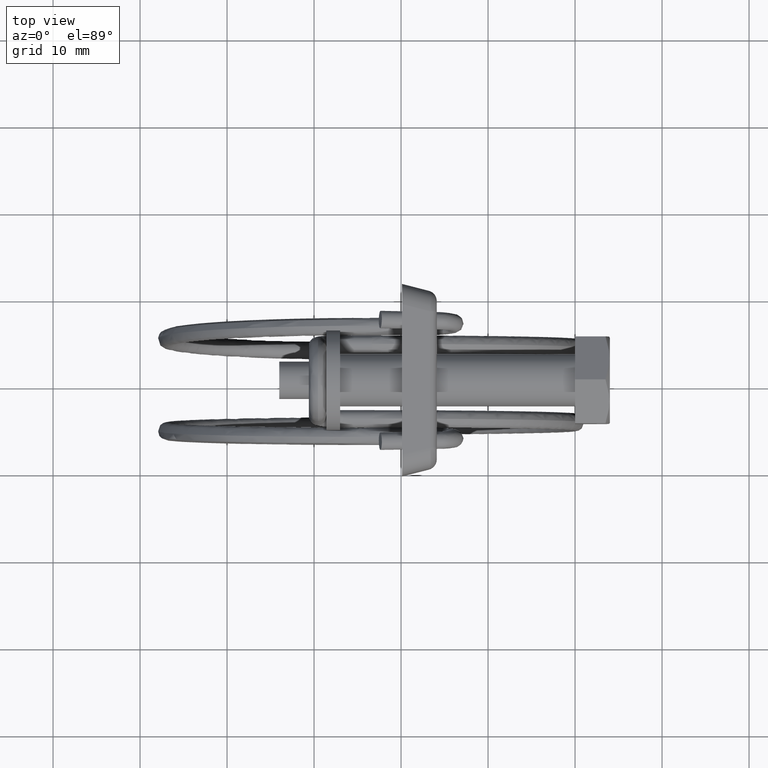
[diagram: clean part render]
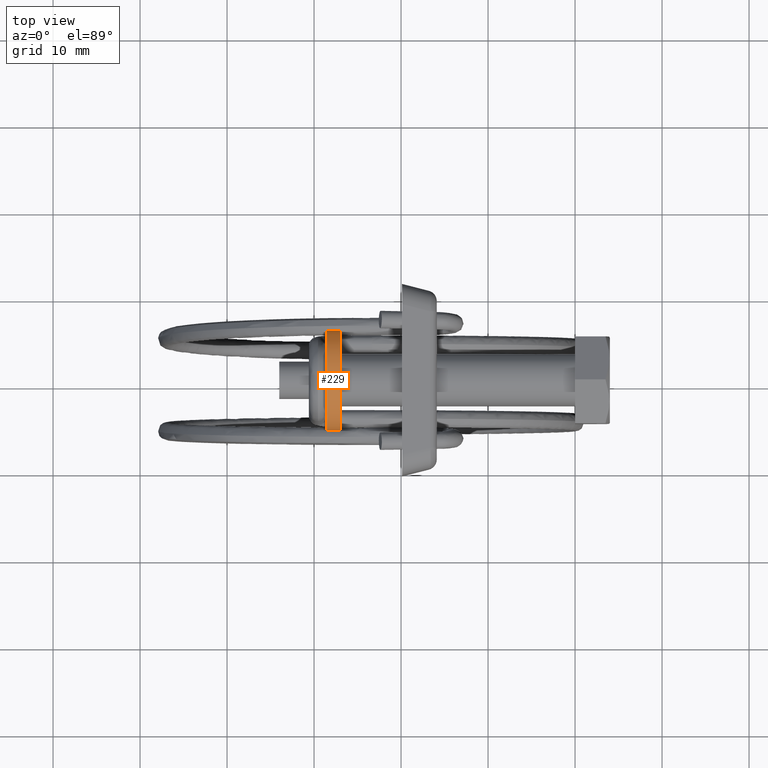
[diagram: same view with one face highlighted and labeled with its STEP entity id]
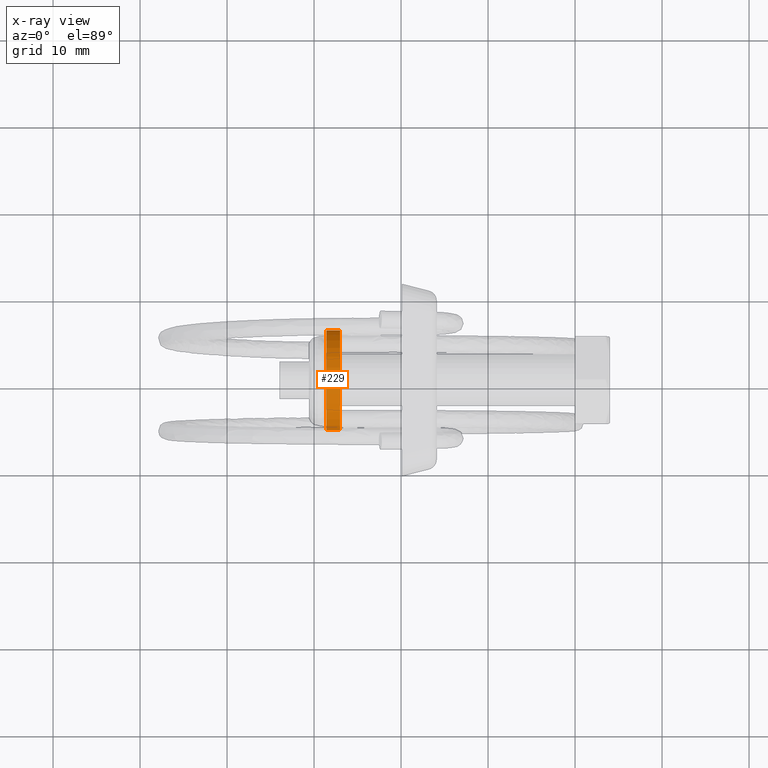
[diagram: x-ray of the same camera — body ghosted, the highlighted face saturated]
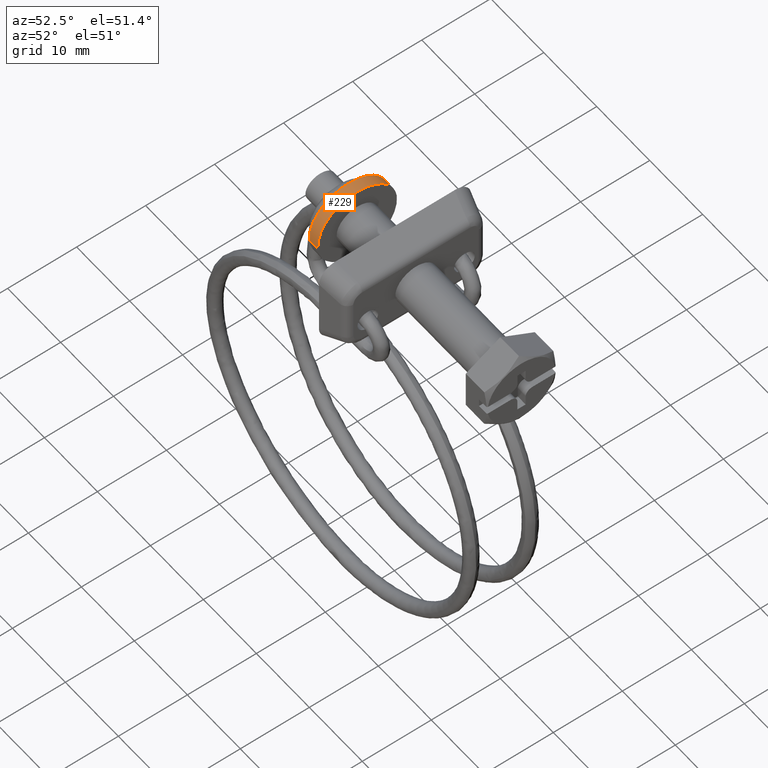
[diagram: same view with one face highlighted and labeled with its STEP entity id]
A machine part, top view. The second image highlights one B-rep face of the part: STEP entity #229.
The next image is the same camera in x-ray: the body ghosted, the highlighted face saturated — about 0% of this face is hidden behind the body in this view.
A second angle (auxiliary view) of the same face is appended — the face is thin or edge-on in the first view.
In plain terms, the highlighted face is a freeform B-spline surface patch.
Its self-contained STEP definition (entity closure, byte-faithful):
#66=CARTESIAN_POINT('',(-28.600000000000001,5.709804776584528,0.678696849331494));
#67=VERTEX_POINT('',#66);
#85=CARTESIAN_POINT('',(-27.0,5.709804776584528,0.678696849331494));
#86=VERTEX_POINT('',#85);
#87=CARTESIAN_POINT('',(-27.0,5.709804776584528,0.678696849331494));
#88=CARTESIAN_POINT('',(-28.600000000000001,5.709804776584528,0.678696849331494));
#89=QUASI_UNIFORM_CURVE('',1,(#87,#88),.UNSPECIFIED.,.F.,.U.);
#90=EDGE_CURVE('',#86,#67,#89,.T.);
#109=CARTESIAN_POINT('',(-27.0,-5.739275290784300,-0.351025834636235));
#110=VERTEX_POINT('',#109);
#124=CARTESIAN_POINT('',(-28.599999999999909,-5.739275293275673,-0.351025793901882));
#125=VERTEX_POINT('',#124);
#126=CARTESIAN_POINT('',(-27.0,-5.739275290784300,-0.351025834636235));
#127=CARTESIAN_POINT('',(-28.599999999999909,-5.739275293275673,-0.351025793901882));
#128=QUASI_UNIFORM_CURVE('',1,(#126,#127),.UNSPECIFIED.,.F.,.U.);
#129=EDGE_CURVE('',#110,#125,#128,.T.);
#147=CARTESIAN_POINT('',(-26.960000000000001,-5.739275090925734,-0.351029102325428));
#148=CARTESIAN_POINT('',(-26.959999999999997,-6.090304193251162,5.388245988600307));
#149=CARTESIAN_POINT('',(-26.960000000000001,-0.351029102325428,5.739275090925734));
#150=CARTESIAN_POINT('',(-26.960000000000001,5.068875072327130,6.070770631212033));
#151=CARTESIAN_POINT('',(-26.960000000000004,5.709804776591082,0.678696849276361));
#152=CARTESIAN_POINT('',(-28.641000000000009,-5.739275090925734,-0.351029102325428));
#153=CARTESIAN_POINT('',(-28.641000000000005,-6.090304193251162,5.388245988600307));
#154=CARTESIAN_POINT('',(-28.641000000000009,-0.351029102325428,5.739275090925734));
#155=CARTESIAN_POINT('',(-28.640999999999995,5.068875072327130,6.070770631212033));
#156=CARTESIAN_POINT('',(-28.641000000000016,5.709804776591082,0.678696849276361));
#164=(BOUNDED_SURFACE()B_SPLINE_SURFACE(2,1,((#147,#152),(#148,#153),(#149,#154),(#150,#155),(#151,#156)),.UNSPECIFIED.,.F.,.F.,.U.)B_SPLINE_SURFACE_WITH_KNOTS((3,2,3),(2,2),(0.0,9.526911934581184,18.672747391779119),(0.0,1.0),.UNSPECIFIED.)GEOMETRIC_REPRESENTATION_ITEM()RATIONAL_B_SPLINE_SURFACE(((1.0,1.0),(0.707106781186548,0.707106781186548),(1.0,1.0),(0.718822509939086,0.718822509939086),(0.977505800795127,0.977505800795127)))REPRESENTATION_ITEM('')SURFACE());
#165=CARTESIAN_POINT('',(-28.600000000000001,0.0,5.750000000000000));
#166=VERTEX_POINT('',#165);
#167=CARTESIAN_POINT('',(-28.600000000000001,0.0,5.750000000000000));
#168=CARTESIAN_POINT('',(-28.600000000000005,5.107003524121041,5.749999999999999));
#169=CARTESIAN_POINT('',(-28.600000000000005,5.709804776584528,0.678696849331494));
#177=(BOUNDED_CURVE()B_SPLINE_CURVE(2,(#167,#168,#169),.UNSPECIFIED.,.F.,.U.)B_SPLINE_CURVE_WITH_KNOTS((3,3),(0.0,0.229562473512380),.UNSPECIFIED.)CURVE()GEOMETRIC_REPRESENTATION_ITEM()RATIONAL_B_SPLINE_CURVE((1.0,0.731050832856724,0.956026754181489))REPRESENTATION_ITEM(''));
#178=EDGE_CURVE('',#166,#67,#177,.T.);
#179=ORIENTED_EDGE('',*,*,#178,.F.);
#180=CARTESIAN_POINT('',(-28.599999999999905,-5.739275293275673,-0.351025793901882));
#181=CARTESIAN_POINT('',(-28.600000000000001,-5.749999999999999,-0.175676730116938));
#182=CARTESIAN_POINT('',(-28.600000000000001,-5.750000000000000,0.0));
#183=CARTESIAN_POINT('',(-28.600000000000012,-5.750000000000000,5.750000000000000));
#184=CARTESIAN_POINT('',(-28.600000000000001,0.0,5.750000000000000));
#192=(BOUNDED_CURVE()B_SPLINE_CURVE(2,(#180,#181,#182,#183,#184),.UNSPECIFIED.,.F.,.U.)B_SPLINE_CURVE_WITH_KNOTS((3,2,3),(0.739333061707126,0.750000000000000,1.0),.UNSPECIFIED.)CURVE()GEOMETRIC_REPRESENTATION_ITEM()RATIONAL_B_SPLINE_CURVE((0.976072254846062,0.987502904434063,1.0,0.707106781186548,1.0))REPRESENTATION_ITEM(''));
#193=EDGE_CURVE('',#125,#166,#192,.T.);
#194=ORIENTED_EDGE('',*,*,#193,.F.);
#195=ORIENTED_EDGE('',*,*,#129,.F.);
#196=CARTESIAN_POINT('',(-27.0,0.0,5.750000000000000));
#197=VERTEX_POINT('',#196);
#198=CARTESIAN_POINT('',(-26.999999999999996,-5.739275290784300,-0.351025834636235));
#199=CARTESIAN_POINT('',(-27.000000000000007,-5.750000000000000,-0.175676750541221));
#200=CARTESIAN_POINT('',(-27.0,-5.750000000000000,0.0));
#201=CARTESIAN_POINT('',(-27.000000000000011,-5.750000000000000,5.750000000000000));
#202=CARTESIAN_POINT('',(-27.0,0.0,5.750000000000000));
#210=(BOUNDED_CURVE()B_SPLINE_CURVE(2,(#198,#199,#200,#201,#202),.UNSPECIFIED.,.F.,.U.)B_SPLINE_CURVE_WITH_KNOTS((3,2,3),(0.739333060482480,0.750000000000000,1.0),.UNSPECIFIED.)CURVE()GEOMETRIC_REPRESENTATION_ITEM()RATIONAL_B_SPLINE_CURVE((0.976072252221409,0.987502902999301,1.0,0.707106781186548,1.0))REPRESENTATION_ITEM(''));
#211=EDGE_CURVE('',#110,#197,#210,.T.);
#212=ORIENTED_EDGE('',*,*,#211,.T.);
#213=CARTESIAN_POINT('',(-27.0,0.0,5.750000000000000));
#214=CARTESIAN_POINT('',(-27.0,5.107003524121041,5.749999999999999));
#215=CARTESIAN_POINT('',(-26.999999999999996,5.709804776584528,0.678696849331494));
#223=(BOUNDED_CURVE()B_SPLINE_CURVE(2,(#213,#214,#215),.UNSPECIFIED.,.F.,.U.)B_SPLINE_CURVE_WITH_KNOTS((3,3),(0.0,0.229562473512380),.UNSPECIFIED.)CURVE()GEOMETRIC_REPRESENTATION_ITEM()RATIONAL_B_SPLINE_CURVE((1.0,0.731050832856724,0.956026754181489))REPRESENTATION_ITEM(''));
#224=EDGE_CURVE('',#197,#86,#223,.T.);
#225=ORIENTED_EDGE('',*,*,#224,.T.);
#226=ORIENTED_EDGE('',*,*,#90,.T.);
#227=EDGE_LOOP('',(#179,#194,#195,#212,#225,#226));
#228=FACE_OUTER_BOUND('',#227,.T.);
#229=ADVANCED_FACE('',(#228),#164,.T.);